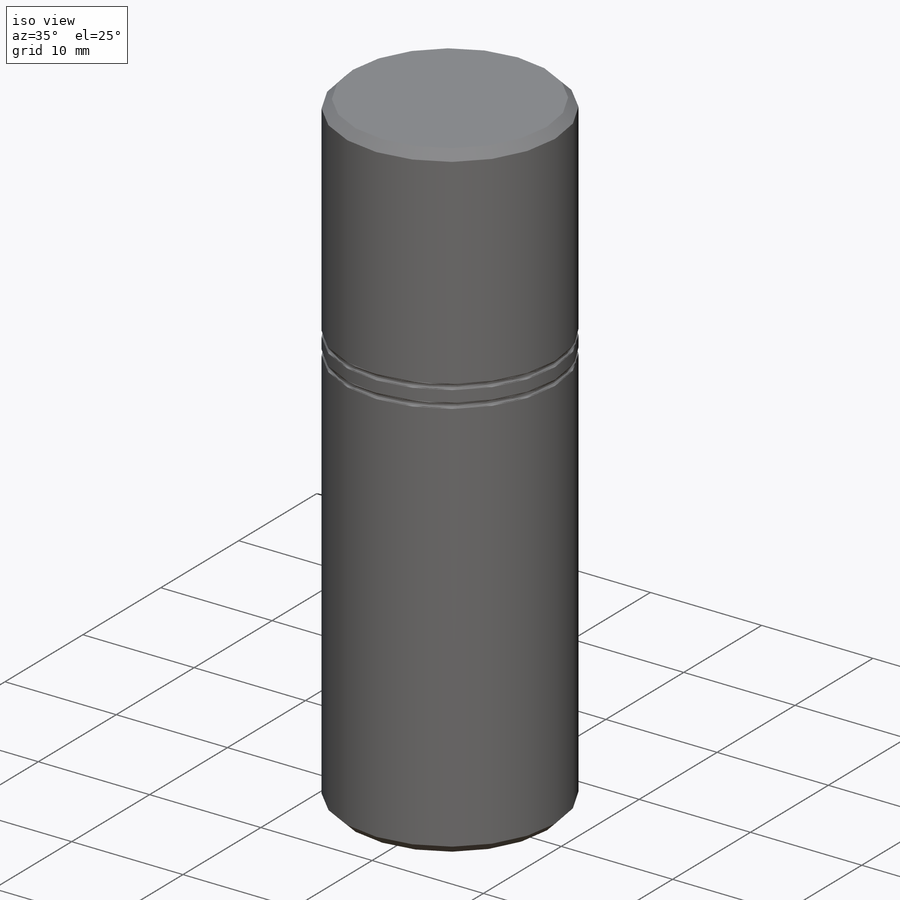
[diagram: iso view]
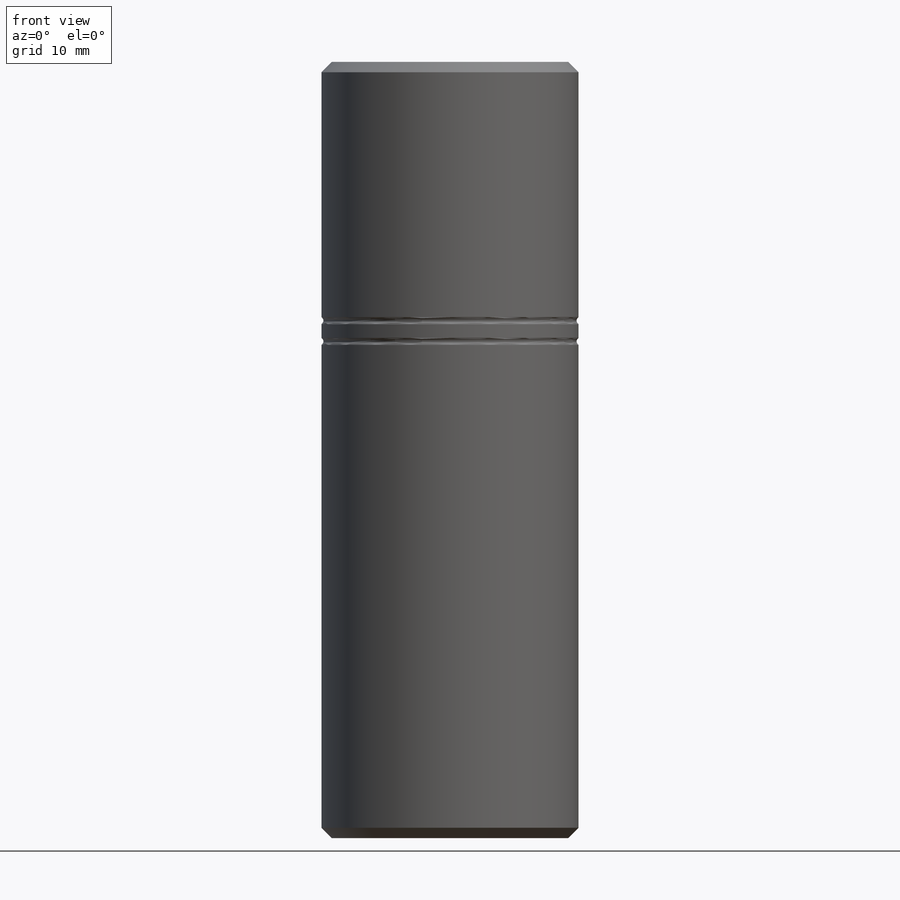
[diagram: front view]
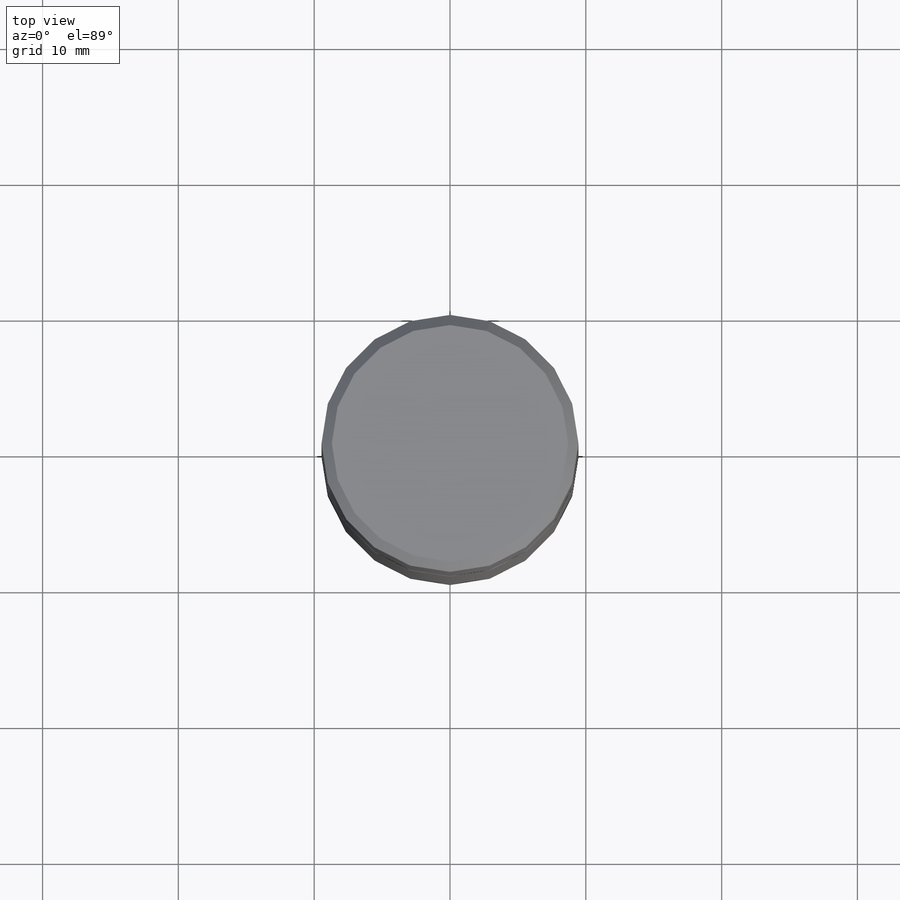
[diagram: top view]
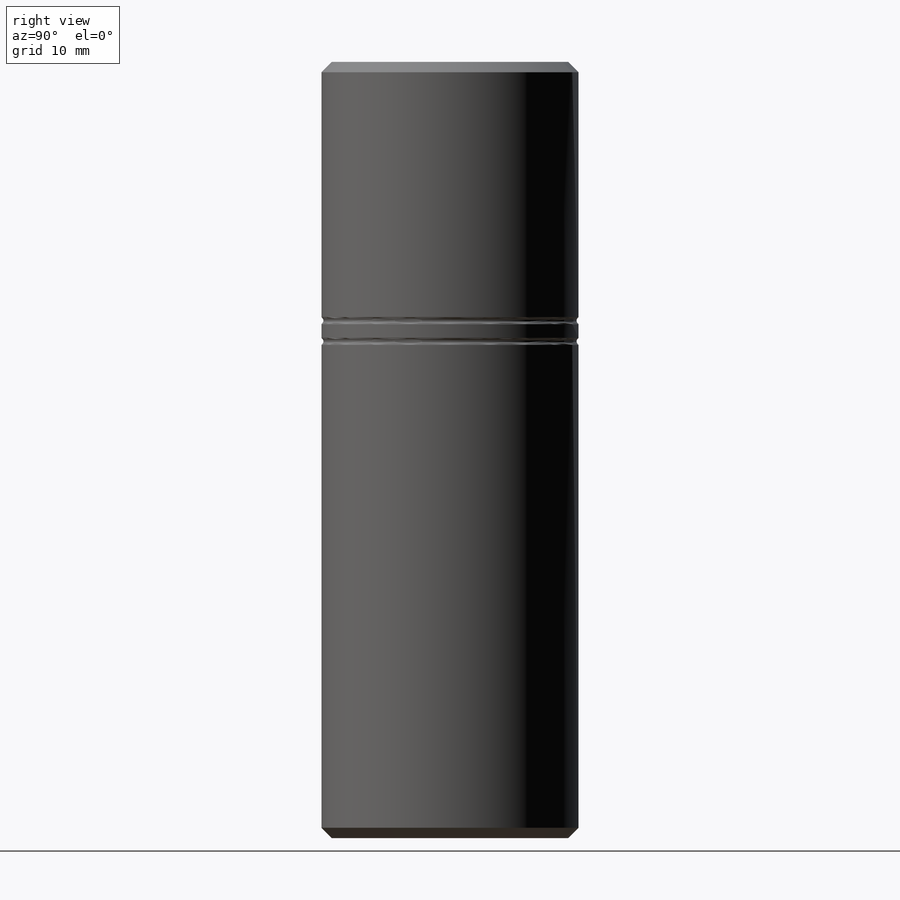
[diagram: right view]
SOLIDWORKS PART (.sldprt)
format: sldprt  version: not decoded by parser v0  size: 227,328 bytes
history: native  units: mm
features: sketch x2, material x1, revolve x1, cut_revolve x1, pattern_linear x1 + 1 further entry (+13 scaffold rows collapsed)
feature tree (20):
  scaffold x13  (default folders/planes/origin — collapsed)
  material  "Brass"
  "Origin"  ID=-1
  sketch  "Sketch1"  dims[c1.D1=57.15mm c1.D2=2.286mm c1.D3=1.016mm c1.D4=4.826mm c1.D5=9.6012mm c1.D6=18.923mm c1.D9=0.254mm c2.D4=0.254mm c2.D3=0.254mm c2.D11=0.762mm c2.D12=0.762mm]
  revolve  "Revolve1"  Angle=360deg
  sketch  "Sketch2"  dims[c1.D5=0.254mm c1.D1=36.576mm c1.D2=19.05mm c1.D3=0.635mm c1.D4=0.762mm c2.D4=45.0deg]
  cut_revolve  "Cut-Revolve1"  Angle=360deg
  pattern_linear  "LPattern1"  Count1=2 Count2=1 Spacing1=1.524mm Spacing2=50mm
decode coverage: 5 of 5 modeling features carry decoded parameters; 1 rows unclassified (native names shown)
note: suppression state not decoded; provenance and decode notes live in map.json
